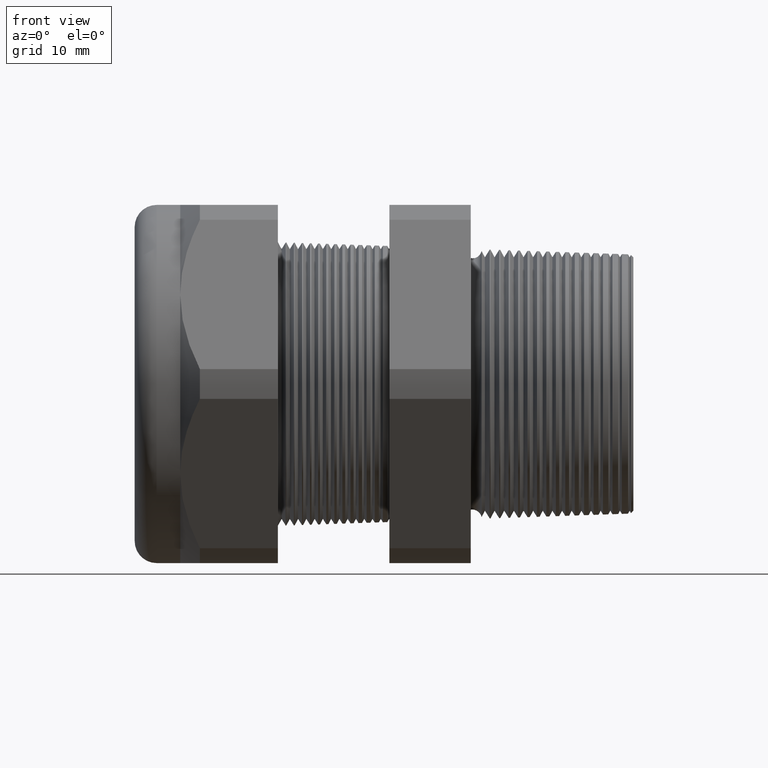
[diagram: clean part render]
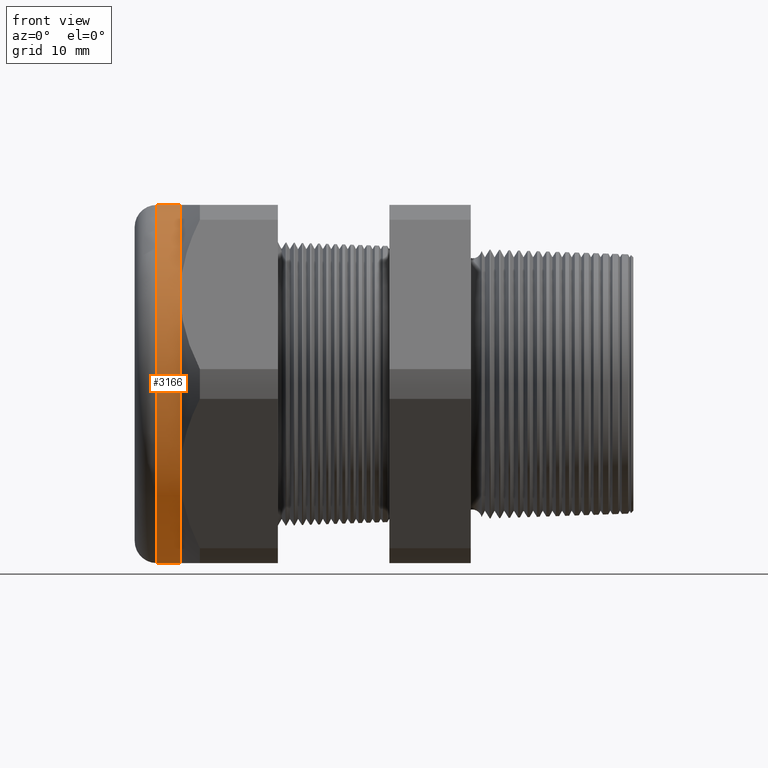
[diagram: same view with one face highlighted and labeled with its STEP entity id]
A machine part, front view. The second image highlights one B-rep face of the part: STEP entity #3166.
In plain terms, the highlighted cylindrical surface (partial cylindrical patch) has radius 16.51 mm, axis along (1, 0, 0).
Its self-contained STEP definition (entity closure, byte-faithful):
#2016 = CARTESIAN_POINT ( 'NONE',  ( -1.450000000000000400, 0.0000000000000000000, -0.6500000000000001300 ) ) ;
#2017 = CARTESIAN_POINT ( 'NONE',  ( -1.450000000000000400, 7.960204194457797900E-017, 0.6500000000000001300 ) ) ;
#2143 = CARTESIAN_POINT ( 'NONE',  ( -1.364645669291338500, 0.0000000000000000000, 0.6499999999999999100 ) ) ;
#2144 = DIRECTION ( 'NONE',  ( 1.000000000000000000, 0.0000000000000000000, 0.0000000000000000000 ) ) ;
#2145 = VECTOR ( 'NONE', #2144, 39.37007874015748100 ) ;
#2146 = CARTESIAN_POINT ( 'NONE',  ( 0.0000000000000000000, 7.960204194457797900E-017, 0.6500000000000001300 ) ) ;
#2147 = LINE ( 'NONE', #2146, #2145 ) ;
#2552 = EDGE_CURVE ( 'NONE', #6213, #2558, #4553, .T. ) ;
#2558 = VERTEX_POINT ( 'NONE', #4606 ) ;
#3006 = VERTEX_POINT ( 'NONE', #5505 ) ;
#3056 = VERTEX_POINT ( 'NONE', #5595 ) ;
#3166 = ADVANCED_FACE ( 'NONE', ( #5796 ), #5854, .T. ) ;
#3167 = ORIENTED_EDGE ( 'NONE', *, *, #6267, .F. ) ;
#3168 = ORIENTED_EDGE ( 'NONE', *, *, #3169, .T. ) ;
#3169 = EDGE_CURVE ( 'NONE', #6212, #6213, #5848, .T. ) ;
#3170 = ORIENTED_EDGE ( 'NONE', *, *, #2552, .T. ) ;
#3171 = ORIENTED_EDGE ( 'NONE', *, *, #3172, .F. ) ;
#3172 = EDGE_CURVE ( 'NONE', #3056, #2558, #5844, .T. ) ;
#3173 = ORIENTED_EDGE ( 'NONE', *, *, #3174, .F. ) ;
#3174 = EDGE_CURVE ( 'NONE', #3006, #3056, #5839, .T. ) ;
#3175 = ORIENTED_EDGE ( 'NONE', *, *, #3176, .F. ) ;
#3176 = EDGE_CURVE ( 'NONE', #6268, #3006, #5834, .T. ) ;
#3190 = EDGE_LOOP ( 'NONE', ( #3167, #3168, #3170, #3171, #3173, #3175 ) ) ;
#4546 = DIRECTION ( 'NONE',  ( 1.000000000000000000, 0.0000000000000000000, 0.0000000000000000000 ) ) ;
#4547 = VECTOR ( 'NONE', #4546, 39.37007874015748100 ) ;
#4548 = CARTESIAN_POINT ( 'NONE',  ( 0.0000000000000000000, 0.0000000000000000000, -0.6500000000000001300 ) ) ;
#4553 = LINE ( 'NONE', #4548, #4547 ) ;
#4606 = CARTESIAN_POINT ( 'NONE',  ( -1.364645669291338500, 0.0000000000000000000, -0.6500000000000001300 ) ) ;
#5505 = CARTESIAN_POINT ( 'NONE',  ( -1.364645669291338500, -0.5629165124598855000, 0.3249999999999999600 ) ) ;
#5595 = CARTESIAN_POINT ( 'NONE',  ( -1.364645669291338500, -0.5629165124598851700, -0.3250000000000002900 ) ) ;
#5796 = FACE_OUTER_BOUND ( 'NONE', #3190, .T. ) ;
#5830 = DIRECTION ( 'NONE',  ( 0.0000000000000000000, 0.0000000000000000000, -1.000000000000000000 ) ) ;
#5831 = DIRECTION ( 'NONE',  ( 1.000000000000000000, 0.0000000000000000000, 0.0000000000000000000 ) ) ;
#5832 = CARTESIAN_POINT ( 'NONE',  ( -1.364645669291338500, 0.0000000000000000000, 0.0000000000000000000 ) ) ;
#5833 = AXIS2_PLACEMENT_3D ( 'NONE', #5832, #5831, #5830 ) ;
#5834 = CIRCLE ( 'NONE', #5833, 0.6500000000000001300 ) ;
#5835 = DIRECTION ( 'NONE',  ( 0.0000000000000000000, 0.0000000000000000000, -1.000000000000000000 ) ) ;
#5836 = DIRECTION ( 'NONE',  ( 1.000000000000000000, 0.0000000000000000000, 0.0000000000000000000 ) ) ;
#5837 = CARTESIAN_POINT ( 'NONE',  ( -1.364645669291338500, 0.0000000000000000000, 0.0000000000000000000 ) ) ;
#5838 = AXIS2_PLACEMENT_3D ( 'NONE', #5837, #5836, #5835 ) ;
#5839 = CIRCLE ( 'NONE', #5838, 0.6500000000000001300 ) ;
#5840 = DIRECTION ( 'NONE',  ( 0.0000000000000000000, 0.0000000000000000000, -1.000000000000000000 ) ) ;
#5841 = DIRECTION ( 'NONE',  ( 1.000000000000000000, 0.0000000000000000000, 0.0000000000000000000 ) ) ;
#5842 = CARTESIAN_POINT ( 'NONE',  ( -1.364645669291338500, 0.0000000000000000000, 0.0000000000000000000 ) ) ;
#5843 = AXIS2_PLACEMENT_3D ( 'NONE', #5842, #5841, #5840 ) ;
#5844 = CIRCLE ( 'NONE', #5843, 0.6500000000000001300 ) ;
#5845 = DIRECTION ( 'NONE',  ( 0.0000000000000000000, 0.0000000000000000000, 1.000000000000000000 ) ) ;
#5846 = DIRECTION ( 'NONE',  ( 1.000000000000000000, 0.0000000000000000000, 0.0000000000000000000 ) ) ;
#5847 = AXIS2_PLACEMENT_3D ( 'NONE', #5853, #5846, #5845 ) ;
#5848 = CIRCLE ( 'NONE', #5847, 0.6500000000000001300 ) ;
#5849 = DIRECTION ( 'NONE',  ( 0.0000000000000000000, 0.0000000000000000000, -1.000000000000000000 ) ) ;
#5850 = DIRECTION ( 'NONE',  ( 1.000000000000000000, 0.0000000000000000000, 0.0000000000000000000 ) ) ;
#5851 = CARTESIAN_POINT ( 'NONE',  ( 0.0000000000000000000, 0.0000000000000000000, 0.0000000000000000000 ) ) ;
#5852 = AXIS2_PLACEMENT_3D ( 'NONE', #5851, #5850, #5849 ) ;
#5853 = CARTESIAN_POINT ( 'NONE',  ( -1.450000000000000400, 0.0000000000000000000, 0.0000000000000000000 ) ) ;
#5854 = CYLINDRICAL_SURFACE ( 'NONE', #5852, 0.6500000000000001300 ) ;
#6212 = VERTEX_POINT ( 'NONE', #2017 ) ;
#6213 = VERTEX_POINT ( 'NONE', #2016 ) ;
#6267 = EDGE_CURVE ( 'NONE', #6212, #6268, #2147, .T. ) ;
#6268 = VERTEX_POINT ( 'NONE', #2143 ) ;